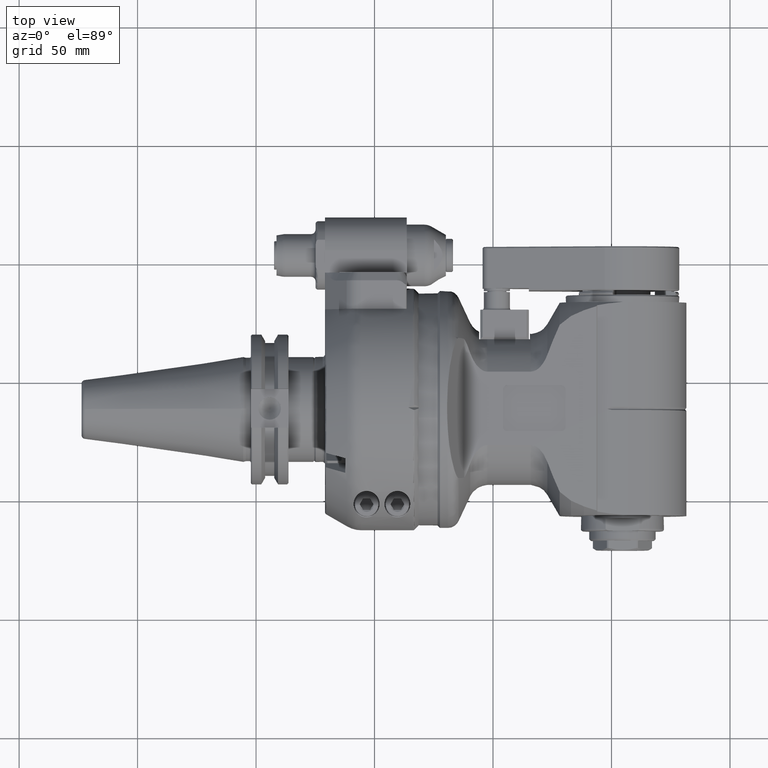
[diagram: clean part render]
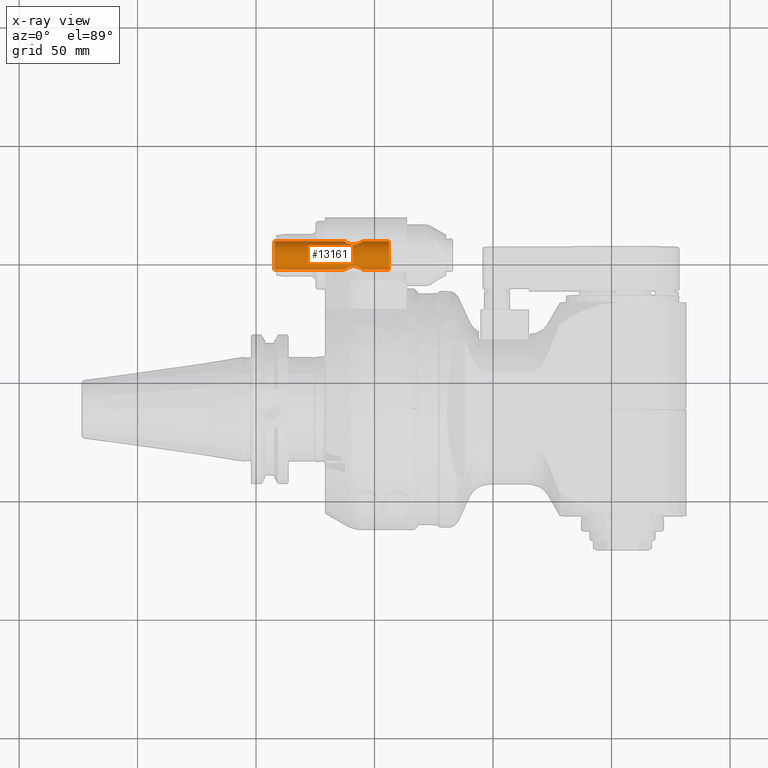
[diagram: x-ray — body ghosted, one internal face saturated and labeled with its STEP entity id]
A machine part, top view, then the same camera in x-ray: the body is ghosted and one INTERNAL B-rep face — a face not visible from any outside direction — is saturated and labeled: STEP entity #13161.
In plain terms, the highlighted cylindrical surface (bore or boss wall) has radius 6 mm, axis along (-1, -0, -0).
Its self-contained STEP definition (entity closure, byte-faithful):
#465=B_SPLINE_CURVE_WITH_KNOTS('',3,(#24340,#24341,#24342,#24343,#24344,
#24345,#24346,#24347,#24348,#24349),.UNSPECIFIED.,.F.,.F.,(4,2,2,2,4),(-0.62777148553307,
-0.471696683553054,-0.315621881573039,-0.157810940786519,0.),
 .UNSPECIFIED.);
#466=B_SPLINE_CURVE_WITH_KNOTS('',3,(#24351,#24352,#24353,#24354,#24355,
#24356,#24357,#24358,#24359,#24360),.UNSPECIFIED.,.F.,.F.,(4,2,2,2,4),(-2.51108594213228,
-2.35327500134576,-2.19546406055924,-2.03938925857923,-1.88331445659921),
 .UNSPECIFIED.);
#467=B_SPLINE_CURVE_WITH_KNOTS('',3,(#24363,#24364,#24365,#24366,#24367,
#24368,#24369,#24370,#24371,#24372),.UNSPECIFIED.,.F.,.F.,(4,2,2,2,4),(-1.88331445659921,
-1.72723965461919,-1.57116485263918,-1.41335391185266,-1.25554297106614),
 .UNSPECIFIED.);
#468=B_SPLINE_CURVE_WITH_KNOTS('',3,(#24373,#24374,#24375,#24376,#24377,
#24378,#24379,#24380,#24381,#24382),.UNSPECIFIED.,.F.,.F.,(4,2,2,2,4),(-1.25554297106614,
-1.09773203027962,-0.939921089493101,-0.783846287513086,-0.62777148553307),
 .UNSPECIFIED.);
#469=B_SPLINE_CURVE_WITH_KNOTS('',3,(#24386,#24387,#24388,#24389,#24390,
#24391,#24392,#24393,#24394,#24395,#24396,#24397,#24398,#24399,#24400,#24401,
#24402,#24403),.UNSPECIFIED.,.F.,.F.,(4,2,2,2,2,2,2,2,4),(1.25554297106614,
1.41335391185266,1.57116485263918,1.72723965461919,1.88331445659921,2.03938925857923,
2.19546406055924,2.35327500134576,2.51108594213228),.UNSPECIFIED.);
#470=B_SPLINE_CURVE_WITH_KNOTS('',3,(#24404,#24405,#24406,#24407,#24408,
#24409,#24410,#24411,#24412,#24413,#24414,#24415,#24416,#24417,#24418,#24419,
#24420,#24421),.UNSPECIFIED.,.F.,.F.,(4,2,2,2,2,2,2,2,4),(0.,0.157810940786519,
0.315621881573038,0.471696683553054,0.62777148553307,0.783846287513086,
0.939921089493101,1.09773203027962,1.25554297106614),.UNSPECIFIED.);
#670=FACE_BOUND('',#3493,.T.);
#1109=CYLINDRICAL_SURFACE('',#15114,6.);
#1828=CIRCLE('',#15113,6.);
#1829=CIRCLE('',#15115,6.);
#1830=CIRCLE('',#15116,6.);
#2594=FACE_OUTER_BOUND('',#3492,.T.);
#3492=EDGE_LOOP('',(#11878,#11879,#11880,#11881,#11882,#11883,#11884,#11885,
#11886,#11887,#11888));
#3493=EDGE_LOOP('',(#11889,#11890));
#4361=LINE('',#24338,#5206);
#4362=LINE('',#24361,#5207);
#5206=VECTOR('',#19007,6.);
#5207=VECTOR('',#19008,6.);
#6401=VERTEX_POINT('',#24331);
#6402=VERTEX_POINT('',#24334);
#6403=VERTEX_POINT('',#24335);
#6404=VERTEX_POINT('',#24337);
#6405=VERTEX_POINT('',#24339);
#6406=VERTEX_POINT('',#24350);
#6407=VERTEX_POINT('',#24362);
#6408=VERTEX_POINT('',#24384);
#6409=VERTEX_POINT('',#24385);
#8244=EDGE_CURVE('',#6401,#6401,#1828,.T.);
#8245=EDGE_CURVE('',#6402,#6403,#1829,.T.);
#8246=EDGE_CURVE('',#6402,#6404,#4361,.T.);
#8247=EDGE_CURVE('',#6405,#6404,#465,.F.);
#8248=EDGE_CURVE('',#6406,#6405,#466,.F.);
#8249=EDGE_CURVE('',#6406,#6401,#4362,.T.);
#8250=EDGE_CURVE('',#6407,#6406,#467,.F.);
#8251=EDGE_CURVE('',#6404,#6407,#468,.F.);
#8252=EDGE_CURVE('',#6403,#6402,#1830,.T.);
#8253=EDGE_CURVE('',#6408,#6409,#469,.F.);
#8254=EDGE_CURVE('',#6409,#6408,#470,.F.);
#11878=ORIENTED_EDGE('',*,*,#8245,.F.);
#11879=ORIENTED_EDGE('',*,*,#8246,.T.);
#11880=ORIENTED_EDGE('',*,*,#8247,.F.);
#11881=ORIENTED_EDGE('',*,*,#8248,.F.);
#11882=ORIENTED_EDGE('',*,*,#8249,.T.);
#11883=ORIENTED_EDGE('',*,*,#8244,.F.);
#11884=ORIENTED_EDGE('',*,*,#8249,.F.);
#11885=ORIENTED_EDGE('',*,*,#8250,.F.);
#11886=ORIENTED_EDGE('',*,*,#8251,.F.);
#11887=ORIENTED_EDGE('',*,*,#8246,.F.);
#11888=ORIENTED_EDGE('',*,*,#8252,.F.);
#11889=ORIENTED_EDGE('',*,*,#8253,.F.);
#11890=ORIENTED_EDGE('',*,*,#8254,.F.);
#13161=ADVANCED_FACE('',(#2594,#670),#1109,.T.);
#15113=AXIS2_PLACEMENT_3D('',#24332,#19001,#19002);
#15114=AXIS2_PLACEMENT_3D('',#24333,#19003,#19004);
#15115=AXIS2_PLACEMENT_3D('',#24336,#19005,#19006);
#15116=AXIS2_PLACEMENT_3D('',#24383,#19009,#19010);
#19001=DIRECTION('center_axis',(1.,0.,0.));
#19002=DIRECTION('ref_axis',(0.,-1.,0.));
#19003=DIRECTION('center_axis',(-1.,0.,0.));
#19004=DIRECTION('ref_axis',(0.,-1.,0.));
#19005=DIRECTION('center_axis',(-1.,0.,0.));
#19006=DIRECTION('ref_axis',(0.,1.,0.));
#19007=DIRECTION('',(1.,0.,0.));
#19008=DIRECTION('',(1.,0.,0.));
#19009=DIRECTION('center_axis',(-1.,0.,0.));
#19010=DIRECTION('ref_axis',(0.,1.,0.));
#24331=CARTESIAN_POINT('',(-31.75,71.,-7.34788079488412E-16));
#24332=CARTESIAN_POINT('Origin',(-31.75,65.,0.));
#24333=CARTESIAN_POINT('Origin',(-43.,65.,0.));
#24334=CARTESIAN_POINT('',(-80.05000010596,71.,-7.34788079488412E-16));
#24335=CARTESIAN_POINT('',(-80.0500001059625,65.,6.00000000000254));
#24336=CARTESIAN_POINT('Origin',(-80.05000010596,65.,0.));
#24337=CARTESIAN_POINT('',(-50.75,71.,3.95884289685589E-16));
#24338=CARTESIAN_POINT('',(-43.,71.,-7.34788079488412E-16));
#24339=CARTESIAN_POINT('',(-46.75,69.472135955,-4.));
#24340=CARTESIAN_POINT('Ctrl Pts',(-50.75,71.,1.38777878078145E-16));
#24341=CARTESIAN_POINT('Ctrl Pts',(-50.75,71.,-0.520249339933385));
#24342=CARTESIAN_POINT('Ctrl Pts',(-50.6424890628061,70.9267138204752,-1.06408494730267));
#24343=CARTESIAN_POINT('Ctrl Pts',(-50.2283646575541,70.663345910473,-2.04566028873394));
#24344=CARTESIAN_POINT('Ctrl Pts',(-49.9225397180485,70.4754385402165,-2.48431453144388));
#24345=CARTESIAN_POINT('Ctrl Pts',(-49.2304867051743,70.1055206448366,-3.17636754431808));
#24346=CARTESIAN_POINT('Ctrl Pts',(-48.7926670179931,69.8948950778629,-3.47966275670567));
#24347=CARTESIAN_POINT('Ctrl Pts',(-47.8166359204138,69.5744113784163,-3.8913775523215));
#24348=CARTESIAN_POINT('Ctrl Pts',(-47.2760364692884,69.4721359549996,-4.));
#24349=CARTESIAN_POINT('Ctrl Pts',(-46.75,69.4721359549996,-4.));
#24350=CARTESIAN_POINT('',(-42.75,71.,-4.02088509263742E-16));
#24351=CARTESIAN_POINT('Ctrl Pts',(-46.75,69.4721359549996,-4.));
#24352=CARTESIAN_POINT('Ctrl Pts',(-46.2239635307116,69.4721359549996,-4.));
#24353=CARTESIAN_POINT('Ctrl Pts',(-45.6833640795862,69.5744113784163,-3.8913775523215));
#24354=CARTESIAN_POINT('Ctrl Pts',(-44.7073329820069,69.8948950778629,-3.47966275670567));
#24355=CARTESIAN_POINT('Ctrl Pts',(-44.2695132948257,70.1055206448366,-3.17636754431808));
#24356=CARTESIAN_POINT('Ctrl Pts',(-43.5774602819515,70.4754385402165,-2.48431453144388));
#24357=CARTESIAN_POINT('Ctrl Pts',(-43.2716353424459,70.663345910473,-2.04566028873394));
#24358=CARTESIAN_POINT('Ctrl Pts',(-42.8575109371939,70.9267138204752,-1.06408494730268));
#24359=CARTESIAN_POINT('Ctrl Pts',(-42.75,71.,-0.520249339933387));
#24360=CARTESIAN_POINT('Ctrl Pts',(-42.75,71.,-1.38777878078145E-16));
#24361=CARTESIAN_POINT('',(-43.,71.,-7.34788079488412E-16));
#24362=CARTESIAN_POINT('',(-46.75,69.4721359549996,4.));
#24363=CARTESIAN_POINT('Ctrl Pts',(-42.75,71.,-6.93889390390723E-17));
#24364=CARTESIAN_POINT('Ctrl Pts',(-42.75,71.,0.520249339933385));
#24365=CARTESIAN_POINT('Ctrl Pts',(-42.8575109371939,70.9267138204752,1.06408494730267));
#24366=CARTESIAN_POINT('Ctrl Pts',(-43.2716353424459,70.663345910473,2.04566028873394));
#24367=CARTESIAN_POINT('Ctrl Pts',(-43.5774602819515,70.4754385402165,2.48431453144388));
#24368=CARTESIAN_POINT('Ctrl Pts',(-44.2695132948257,70.1055206448366,3.17636754431808));
#24369=CARTESIAN_POINT('Ctrl Pts',(-44.7073329820069,69.8948950778629,3.47966275670567));
#24370=CARTESIAN_POINT('Ctrl Pts',(-45.6833640795862,69.5744113784163,3.8913775523215));
#24371=CARTESIAN_POINT('Ctrl Pts',(-46.2239635307116,69.4721359549996,4.));
#24372=CARTESIAN_POINT('Ctrl Pts',(-46.75,69.4721359549996,4.));
#24373=CARTESIAN_POINT('Ctrl Pts',(-46.75,69.4721359549996,4.));
#24374=CARTESIAN_POINT('Ctrl Pts',(-47.2760364692884,69.4721359549996,4.));
#24375=CARTESIAN_POINT('Ctrl Pts',(-47.8166359204138,69.5744113784163,3.8913775523215));
#24376=CARTESIAN_POINT('Ctrl Pts',(-48.7926670179931,69.8948950778629,3.47966275670567));
#24377=CARTESIAN_POINT('Ctrl Pts',(-49.2304867051743,70.1055206448366,3.17636754431808));
#24378=CARTESIAN_POINT('Ctrl Pts',(-49.9225397180485,70.4754385402165,2.48431453144388));
#24379=CARTESIAN_POINT('Ctrl Pts',(-50.2283646575541,70.663345910473,2.04566028873394));
#24380=CARTESIAN_POINT('Ctrl Pts',(-50.6424890628061,70.9267138204752,1.06408494730267));
#24381=CARTESIAN_POINT('Ctrl Pts',(-50.75,71.,0.520249339933387));
#24382=CARTESIAN_POINT('Ctrl Pts',(-50.75,71.,1.80411241501588E-15));
#24383=CARTESIAN_POINT('Origin',(-80.05000010596,65.,0.));
#24384=CARTESIAN_POINT('',(-46.75,60.527864045,-4.));
#24385=CARTESIAN_POINT('',(-46.75,60.5278640450004,4.));
#24386=CARTESIAN_POINT('Ctrl Pts',(-46.75,60.5278640450004,4.));
#24387=CARTESIAN_POINT('Ctrl Pts',(-46.2239635307116,60.5278640450004,4.));
#24388=CARTESIAN_POINT('Ctrl Pts',(-45.6833640795862,60.4255886215837,3.8913775523215));
#24389=CARTESIAN_POINT('Ctrl Pts',(-44.7073329820069,60.1051049221371,3.47966275670567));
#24390=CARTESIAN_POINT('Ctrl Pts',(-44.2695132948257,59.8944793551634,3.17636754431808));
#24391=CARTESIAN_POINT('Ctrl Pts',(-43.5774602819515,59.5245614597835,2.48431453144388));
#24392=CARTESIAN_POINT('Ctrl Pts',(-43.2716353424459,59.336654089527,2.04566028873394));
#24393=CARTESIAN_POINT('Ctrl Pts',(-42.8575109371939,59.0732861795248,1.06408494730268));
#24394=CARTESIAN_POINT('Ctrl Pts',(-42.75,59.,0.520249339933387));
#24395=CARTESIAN_POINT('Ctrl Pts',(-42.75,59.,-0.520249339933385));
#24396=CARTESIAN_POINT('Ctrl Pts',(-42.8575109371939,59.0732861795248,-1.06408494730267));
#24397=CARTESIAN_POINT('Ctrl Pts',(-43.2716353424459,59.336654089527,-2.04566028873394));
#24398=CARTESIAN_POINT('Ctrl Pts',(-43.5774602819515,59.5245614597835,-2.48431453144388));
#24399=CARTESIAN_POINT('Ctrl Pts',(-44.2695132948257,59.8944793551634,-3.17636754431808));
#24400=CARTESIAN_POINT('Ctrl Pts',(-44.7073329820069,60.1051049221371,-3.47966275670567));
#24401=CARTESIAN_POINT('Ctrl Pts',(-45.6833640795862,60.4255886215837,-3.8913775523215));
#24402=CARTESIAN_POINT('Ctrl Pts',(-46.2239635307116,60.5278640450004,-4.));
#24403=CARTESIAN_POINT('Ctrl Pts',(-46.75,60.5278640450004,-4.));
#24404=CARTESIAN_POINT('Ctrl Pts',(-46.75,60.5278640450004,-4.));
#24405=CARTESIAN_POINT('Ctrl Pts',(-47.2760364692884,60.5278640450004,-4.));
#24406=CARTESIAN_POINT('Ctrl Pts',(-47.8166359204138,60.4255886215837,-3.8913775523215));
#24407=CARTESIAN_POINT('Ctrl Pts',(-48.7926670179931,60.1051049221371,-3.47966275670567));
#24408=CARTESIAN_POINT('Ctrl Pts',(-49.2304867051743,59.8944793551634,-3.17636754431808));
#24409=CARTESIAN_POINT('Ctrl Pts',(-49.9225397180485,59.5245614597835,-2.48431453144388));
#24410=CARTESIAN_POINT('Ctrl Pts',(-50.2283646575541,59.336654089527,-2.04566028873394));
#24411=CARTESIAN_POINT('Ctrl Pts',(-50.6424890628061,59.0732861795248,-1.06408494730267));
#24412=CARTESIAN_POINT('Ctrl Pts',(-50.75,59.,-0.520249339933386));
#24413=CARTESIAN_POINT('Ctrl Pts',(-50.75,59.,0.520249339933386));
#24414=CARTESIAN_POINT('Ctrl Pts',(-50.6424890628061,59.0732861795248,1.06408494730268));
#24415=CARTESIAN_POINT('Ctrl Pts',(-50.2283646575541,59.336654089527,2.04566028873394));
#24416=CARTESIAN_POINT('Ctrl Pts',(-49.9225397180485,59.5245614597835,2.48431453144388));
#24417=CARTESIAN_POINT('Ctrl Pts',(-49.2304867051743,59.8944793551634,3.17636754431808));
#24418=CARTESIAN_POINT('Ctrl Pts',(-48.7926670179931,60.1051049221371,3.47966275670567));
#24419=CARTESIAN_POINT('Ctrl Pts',(-47.8166359204138,60.4255886215837,3.8913775523215));
#24420=CARTESIAN_POINT('Ctrl Pts',(-47.2760364692884,60.5278640450004,4.));
#24421=CARTESIAN_POINT('Ctrl Pts',(-46.75,60.5278640450004,4.));